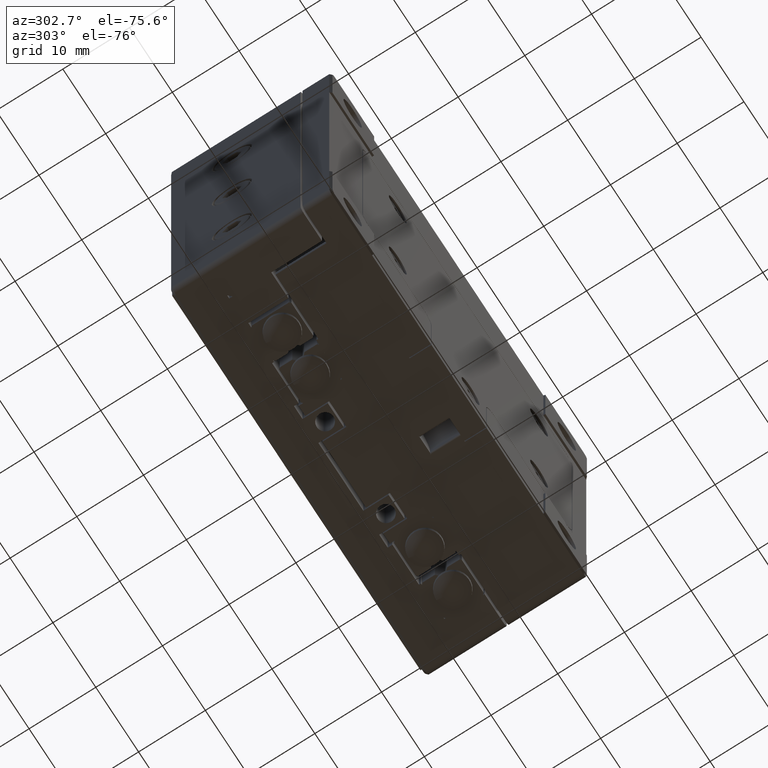
[diagram: clean part render]
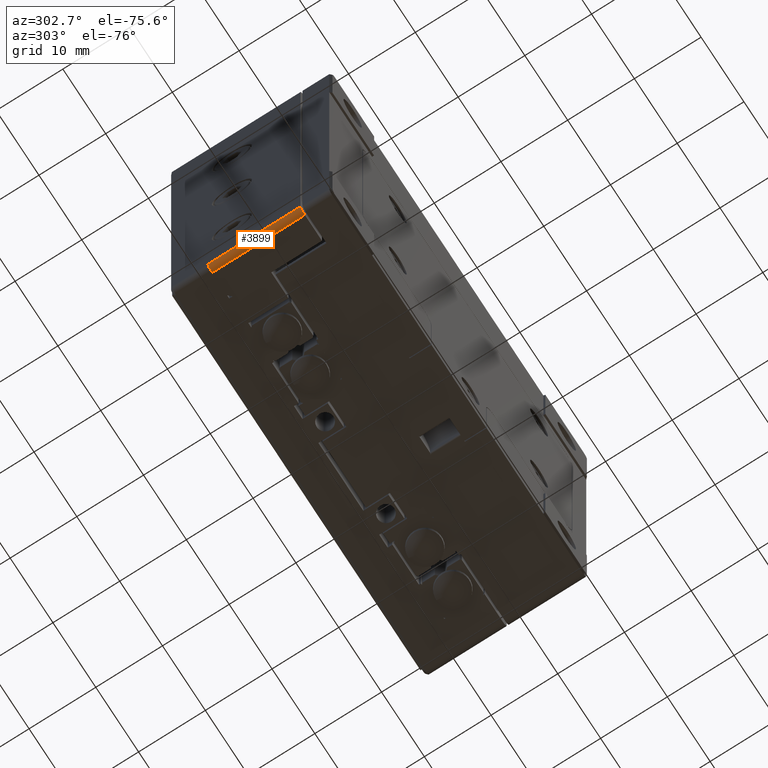
[diagram: same view with one face highlighted and labeled with its STEP entity id]
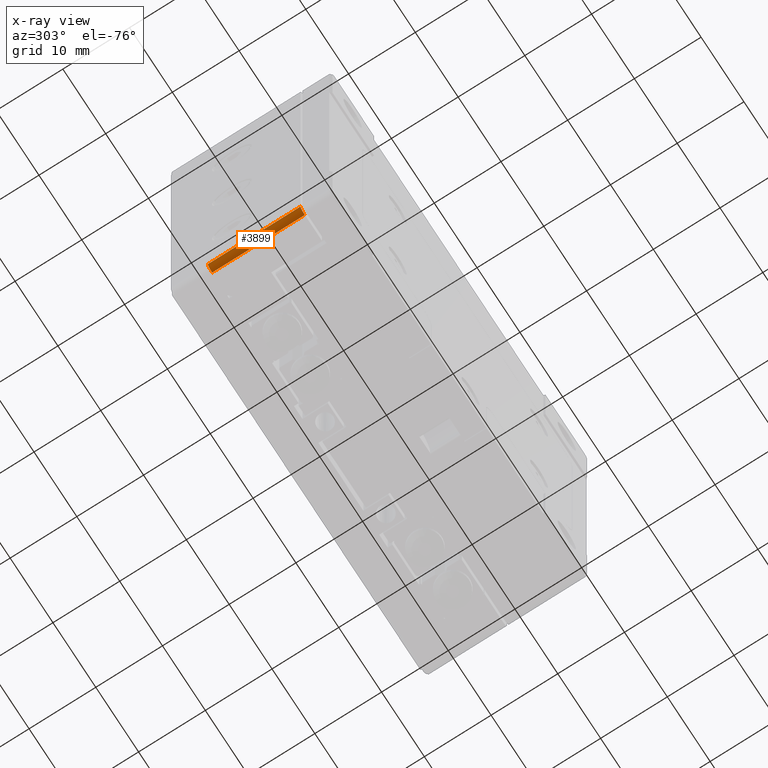
[diagram: x-ray of the same camera — body ghosted, the highlighted face saturated]
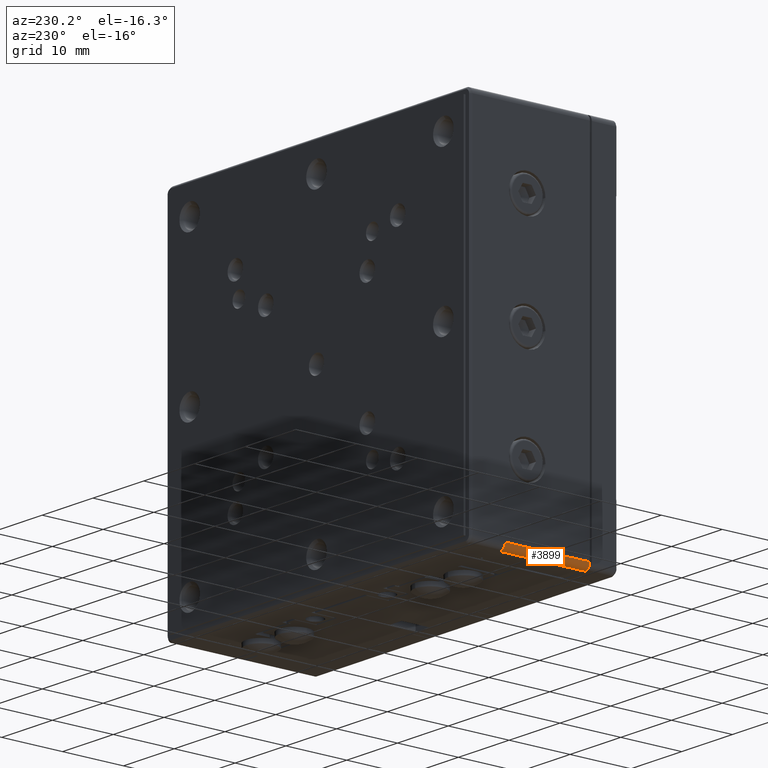
[diagram: same view with one face highlighted and labeled with its STEP entity id]
A machine part, auxiliary view. The second image highlights one B-rep face of the part: STEP entity #3899.
The next image is the same camera in x-ray: the body ghosted, the highlighted face saturated — about 0% of this face is hidden behind the body in this view.
A second angle (auxiliary view) of the same face is appended — the face is thin or edge-on in the first view.
In plain terms, the highlighted cylindrical surface (edge-blend (fillet) strip) has radius 1 mm, axis along (0, -1, -0).
Its self-contained STEP definition (entity closure, byte-faithful):
#8 = CYLINDRICAL_SURFACE ( 'NONE', #1538, 1.000000000000000888 ) ;
#626 = CIRCLE ( 'NONE', #18705, 1.000000000000000888 ) ;
#1179 = DIRECTION ( 'NONE',  ( 0.000000000000000000, 0.000000000000000000, 1.000000000000000000 ) ) ;
#1343 = DIRECTION ( 'NONE',  ( 0.000000000000000000, 0.000000000000000000, 1.000000000000000000 ) ) ;
#1538 = AXIS2_PLACEMENT_3D ( 'NONE', #18832, #5675, #9239 ) ;
#1798 = VERTEX_POINT ( 'NONE', #3311 ) ;
#1803 = CIRCLE ( 'NONE', #19117, 1.000000000000000888 ) ;
#3028 = VERTEX_POINT ( 'NONE', #3441 ) ;
#3311 = CARTESIAN_POINT ( 'NONE',  ( -32.75000000000000000, -30.00000000000000000, 6.924999999999999822 ) ) ;
#3441 = CARTESIAN_POINT ( 'NONE',  ( -33.75000000000000000, -29.00000000000000000, -6.975000000000000533 ) ) ;
#3823 = VERTEX_POINT ( 'NONE', #10477 ) ;
#3899 = ADVANCED_FACE ( 'NONE', ( #9112 ), #8, .T. ) ;
#4971 = LINE ( 'NONE', #16480, #22832 ) ;
#5675 = DIRECTION ( 'NONE',  ( 0.000000000000000000, 0.000000000000000000, -1.000000000000000000 ) ) ;
#6828 = DIRECTION ( 'NONE',  ( 1.000000000000000000, 0.000000000000000000, 0.000000000000000000 ) ) ;
#7425 = DIRECTION ( 'NONE',  ( 0.000000000000000000, 0.000000000000000000, -1.000000000000000000 ) ) ;
#9112 = FACE_OUTER_BOUND ( 'NONE', #19024, .T. ) ;
#9239 = DIRECTION ( 'NONE',  ( -1.000000000000000000, 0.000000000000000000, 0.000000000000000000 ) ) ;
#9377 = VECTOR ( 'NONE', #7425, 1000.000000000000000 ) ;
#9883 = DIRECTION ( 'NONE',  ( 0.000000000000000000, 0.000000000000000000, -1.000000000000000000 ) ) ;
#10016 = CARTESIAN_POINT ( 'NONE',  ( -32.75000000000000000, -29.00000000000000000, -6.975000000000000533 ) ) ;
#10412 = EDGE_CURVE ( 'NONE', #1798, #15208, #20712, .T. ) ;
#10477 = CARTESIAN_POINT ( 'NONE',  ( -33.75000000000000000, -29.00000000000000000, 6.924999999999999822 ) ) ;
#14131 = EDGE_CURVE ( 'NONE', #15208, #3028, #1803, .T. ) ;
#15141 = CARTESIAN_POINT ( 'NONE',  ( -32.75000000000000000, -30.00000000000000000, -6.975000000000000533 ) ) ;
#15208 = VERTEX_POINT ( 'NONE', #20412 ) ;
#16384 = ORIENTED_EDGE ( 'NONE', *, *, #10412, .F. ) ;
#16480 = CARTESIAN_POINT ( 'NONE',  ( -33.75000000000000000, -29.00000000000000000, 6.924999999999999822 ) ) ;
#17616 = DIRECTION ( 'NONE',  ( -1.000000000000000000, 0.000000000000000000, 0.000000000000000000 ) ) ;
#17717 = ORIENTED_EDGE ( 'NONE', *, *, #20129, .F. ) ;
#18104 = ORIENTED_EDGE ( 'NONE', *, *, #14131, .F. ) ;
#18696 = ORIENTED_EDGE ( 'NONE', *, *, #21935, .F. ) ;
#18705 = AXIS2_PLACEMENT_3D ( 'NONE', #24159, #1179, #6828 ) ;
#18832 = CARTESIAN_POINT ( 'NONE',  ( -32.75000000000000000, -29.00000000000000000, -6.975000000000000533 ) ) ;
#19024 = EDGE_LOOP ( 'NONE', ( #18104, #16384, #17717, #18696 ) ) ;
#19117 = AXIS2_PLACEMENT_3D ( 'NONE', #10016, #9883, #17616 ) ;
#20129 = EDGE_CURVE ( 'NONE', #3823, #1798, #626, .T. ) ;
#20412 = CARTESIAN_POINT ( 'NONE',  ( -32.75000000000000000, -30.00000000000000000, -6.975000000000000533 ) ) ;
#20712 = LINE ( 'NONE', #15141, #9377 ) ;
#21935 = EDGE_CURVE ( 'NONE', #3028, #3823, #4971, .T. ) ;
#22832 = VECTOR ( 'NONE', #1343, 1000.000000000000000 ) ;
#24159 = CARTESIAN_POINT ( 'NONE',  ( -32.75000000000000000, -29.00000000000000000, 6.924999999999999822 ) ) ;